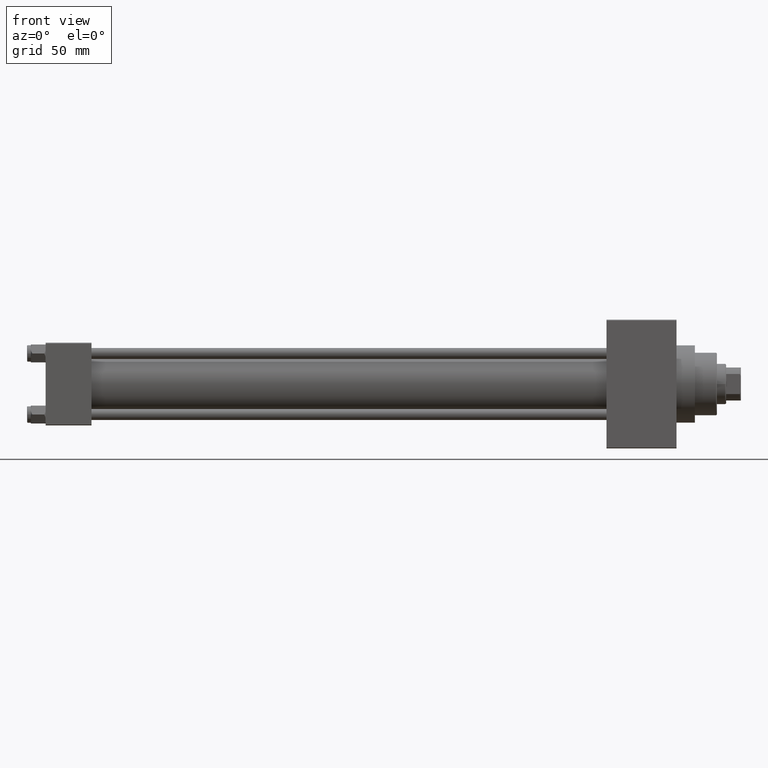
[diagram: clean part render]
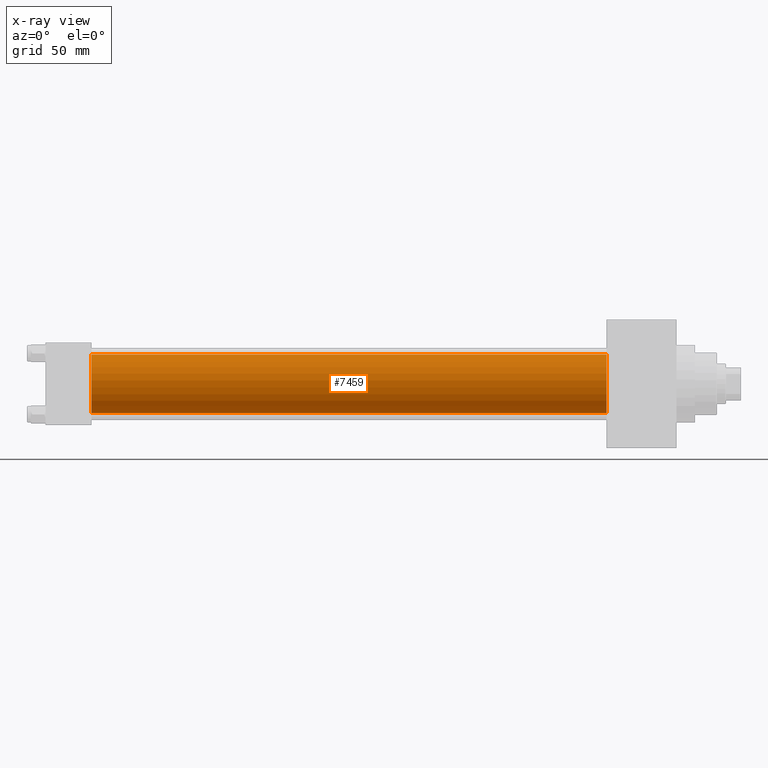
[diagram: x-ray — body ghosted, one internal face saturated and labeled with its STEP entity id]
A machine part, front view, then the same camera in x-ray: the body is ghosted and one INTERNAL B-rep face — a face not visible from any outside direction — is saturated and labeled: STEP entity #7459.
In plain terms, the highlighted cylindrical surface (edge-blend (fillet) strip) has radius 16 mm, axis along (-1, -0, -0).
Its self-contained STEP definition (entity closure, byte-faithful):
#5977 = VERTEX_POINT ( 'NONE', #6871 ) ;
#6871 = CARTESIAN_POINT ( 'NONE',  ( 25.00000000000000000, -6.426503353294456087E-16, -16.00000000000000000 ) ) ;
#7459 = ADVANCED_FACE ( 'NONE', ( #12392 ), #12138, .F. ) ;
#11696 = EDGE_LOOP ( 'NONE', ( #43714, #40743, #15554, #29267 ) ) ;
#12065 = CARTESIAN_POINT ( 'NONE',  ( 305.0000000000000568, -6.426503353294456087E-16, -16.00000000000000000 ) ) ;
#12138 = CYLINDRICAL_SURFACE ( 'NONE', #36149, 16.00000000000000000 ) ;
#12392 = FACE_OUTER_BOUND ( 'NONE', #11696, .T. ) ;
#15554 = ORIENTED_EDGE ( 'NONE', *, *, #37150, .F. ) ;
#16946 = LINE ( 'NONE', #47714, #47629 ) ;
#16974 = CIRCLE ( 'NONE', #22549, 16.00000000000000000 ) ;
#22189 = EDGE_CURVE ( 'NONE', #46053, #5977, #16946, .T. ) ;
#22549 = AXIS2_PLACEMENT_3D ( 'NONE', #45111, #44611, #37926 ) ;
#24405 = DIRECTION ( 'NONE',  ( -1.000000000000000000, -0.000000000000000000, -0.000000000000000000 ) ) ;
#27301 = DIRECTION ( 'NONE',  ( -1.000000000000000000, -0.000000000000000000, -0.000000000000000000 ) ) ;
#27556 = DIRECTION ( 'NONE',  ( 0.000000000000000000, 0.000000000000000000, 1.000000000000000000 ) ) ;
#29267 = ORIENTED_EDGE ( 'NONE', *, *, #35879, .F. ) ;
#30007 = CARTESIAN_POINT ( 'NONE',  ( 305.0000000000000568, -2.602085213965210642E-15, 0.000000000000000000 ) ) ;
#32455 = EDGE_CURVE ( 'NONE', #33988, #46053, #43127, .T. ) ;
#32832 = AXIS2_PLACEMENT_3D ( 'NONE', #30007, #46547, #42334 ) ;
#33988 = VERTEX_POINT ( 'NONE', #38883 ) ;
#34593 = VERTEX_POINT ( 'NONE', #38209 ) ;
#35879 = EDGE_CURVE ( 'NONE', #33988, #34593, #43029, .T. ) ;
#36149 = AXIS2_PLACEMENT_3D ( 'NONE', #38485, #27301, #27556 ) ;
#37150 = EDGE_CURVE ( 'NONE', #34593, #5977, #16974, .T. ) ;
#37926 = DIRECTION ( 'NONE',  ( 0.000000000000000000, 0.000000000000000000, -1.000000000000000000 ) ) ;
#38209 = CARTESIAN_POINT ( 'NONE',  ( 25.00000000000000000, -2.602085213965210642E-15, 16.00000000000000000 ) ) ;
#38485 = CARTESIAN_POINT ( 'NONE',  ( 305.0000000000000568, -2.602085213965210642E-15, 0.000000000000000000 ) ) ;
#38883 = CARTESIAN_POINT ( 'NONE',  ( 305.0000000000000568, -2.602085213965210642E-15, 16.00000000000000000 ) ) ;
#39807 = DIRECTION ( 'NONE',  ( -1.000000000000000000, -0.000000000000000000, -0.000000000000000000 ) ) ;
#40743 = ORIENTED_EDGE ( 'NONE', *, *, #22189, .T. ) ;
#42334 = DIRECTION ( 'NONE',  ( 0.000000000000000000, 0.000000000000000000, -1.000000000000000000 ) ) ;
#43029 = LINE ( 'NONE', #47238, #46390 ) ;
#43127 = CIRCLE ( 'NONE', #32832, 16.00000000000000000 ) ;
#43714 = ORIENTED_EDGE ( 'NONE', *, *, #32455, .T. ) ;
#44611 = DIRECTION ( 'NONE',  ( 1.000000000000000000, 0.000000000000000000, 0.000000000000000000 ) ) ;
#45111 = CARTESIAN_POINT ( 'NONE',  ( 25.00000000000000000, -2.602085213965210642E-15, 0.000000000000000000 ) ) ;
#46053 = VERTEX_POINT ( 'NONE', #12065 ) ;
#46390 = VECTOR ( 'NONE', #24405, 1000.000000000000000 ) ;
#46547 = DIRECTION ( 'NONE',  ( 1.000000000000000000, 0.000000000000000000, 0.000000000000000000 ) ) ;
#47238 = CARTESIAN_POINT ( 'NONE',  ( 305.0000000000000568, -2.602085213965210642E-15, 16.00000000000000000 ) ) ;
#47629 = VECTOR ( 'NONE', #39807, 1000.000000000000000 ) ;
#47714 = CARTESIAN_POINT ( 'NONE',  ( 305.0000000000000568, -6.426503353294456087E-16, -16.00000000000000000 ) ) ;